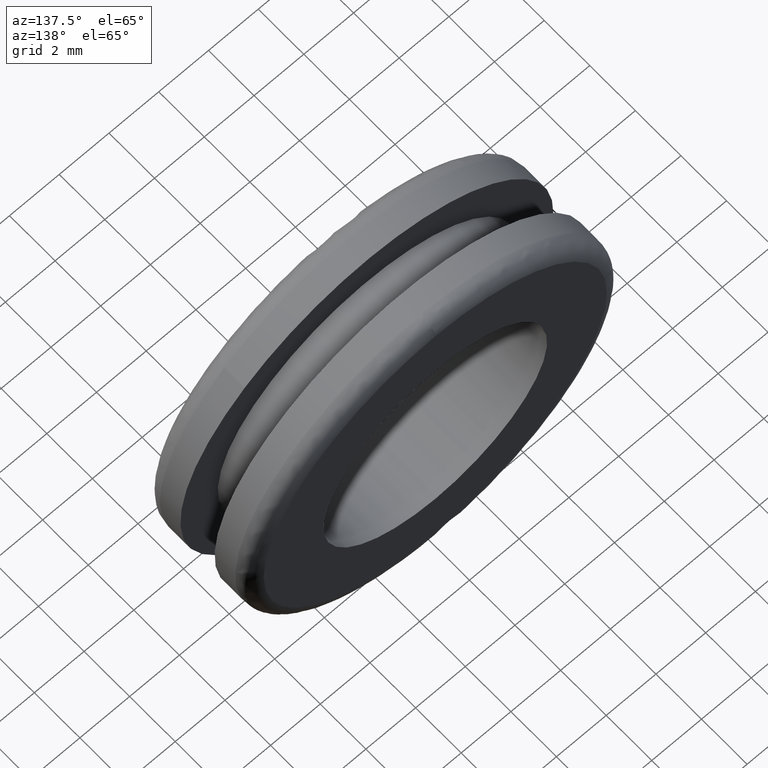
[diagram: clean part render]
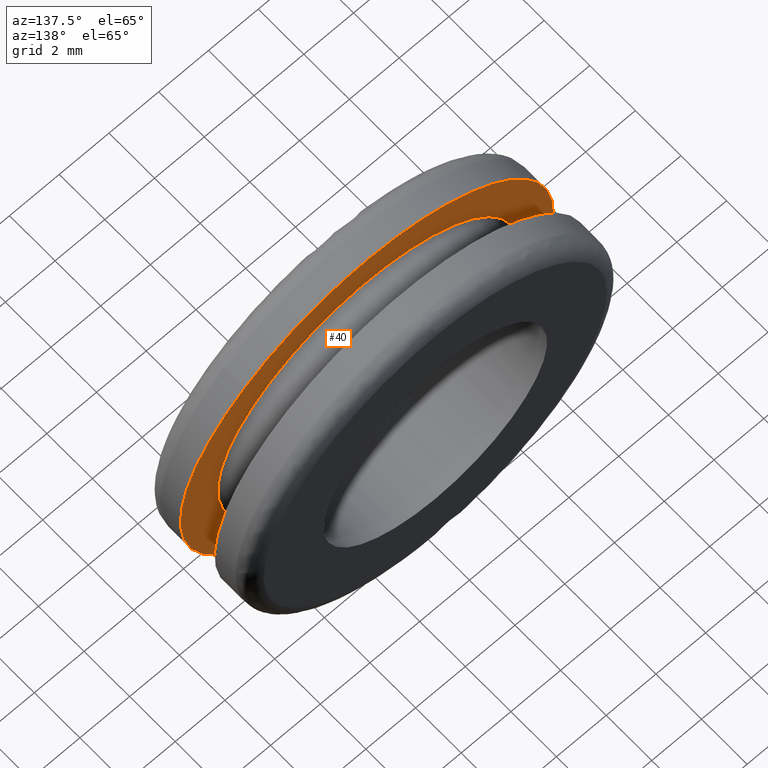
[diagram: same view with one face highlighted and labeled with its STEP entity id]
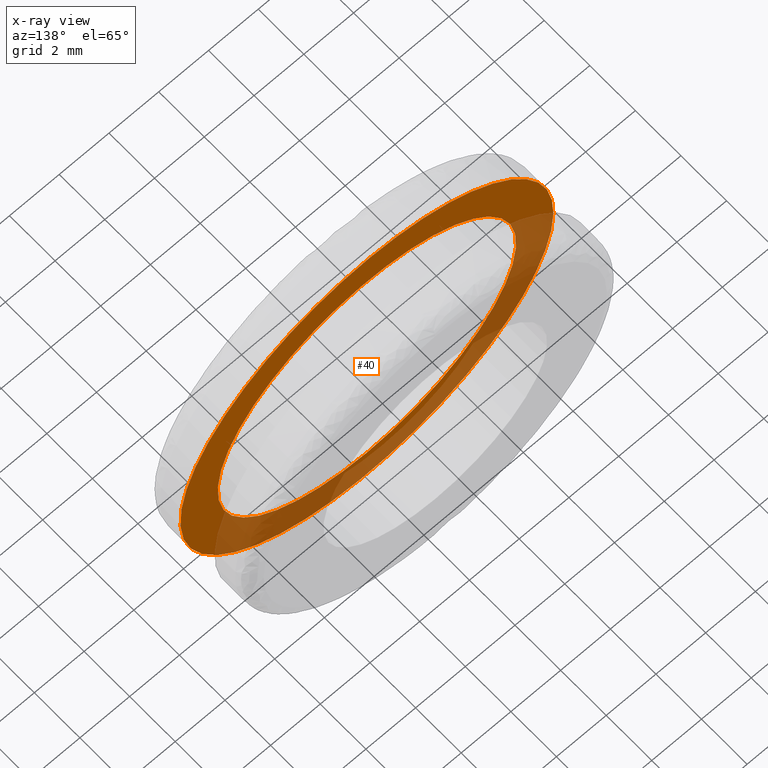
[diagram: x-ray of the same camera — body ghosted, the highlighted face saturated]
A machine part, auxiliary view. The second image highlights one B-rep face of the part: STEP entity #40.
The next image is the same camera in x-ray: the body ghosted, the highlighted face saturated — about 41% of this face is hidden behind the body in this view.
In plain terms, the highlighted planar face has unit normal (0, -1, 0).
Its self-contained STEP definition (entity closure, byte-faithful):
#40=ADVANCED_FACE('',(#57,#58),#56,.F.);
#56=PLANE('',#223);
#57=FACE_OUTER_BOUND('',#224,.T.);
#58=FACE_BOUND('',#225,.T.);
#220=CARTESIAN_POINT('',(-1.71222702354E+001,1.50000000000E+000,1.68422470606E+001));
#221=DIRECTION('',(0.00000000000E+000,-1.00000000000E+000,0.00000000000E+000));
#222=DIRECTION('',(0.00000000000E+000,0.00000000000E+000,-1.00000000000E+000));
#223=AXIS2_PLACEMENT_3D('',#220,#221,#222);
#224=EDGE_LOOP('',(#388,#389,#390));
#225=EDGE_LOOP('',(#391,#392,#393));
#388=ORIENTED_EDGE('',*,*,#480,.F.);
#389=ORIENTED_EDGE('',*,*,#481,.F.);
#390=ORIENTED_EDGE('',*,*,#482,.F.);
#391=ORIENTED_EDGE('',*,*,#483,.T.);
#392=ORIENTED_EDGE('',*,*,#484,.T.);
#393=ORIENTED_EDGE('',*,*,#485,.T.);
#480=EDGE_CURVE('',#526,#527,#528,.T.);
#481=EDGE_CURVE('',#534,#526,#535,.T.);
#482=EDGE_CURVE('',#527,#534,#541,.T.);
#483=EDGE_CURVE('',#547,#548,#549,.T.);
#484=EDGE_CURVE('',#548,#555,#556,.T.);
#485=EDGE_CURVE('',#555,#547,#562,.T.);
#526=VERTEX_POINT('',#836);
#527=VERTEX_POINT('',#837);
#528=CIRCLE('',#841,7.50000042183E+000);
#534=VERTEX_POINT('',#842);
#535=CIRCLE('',#846,7.50000042183E+000);
#541=CIRCLE('',#850,7.50000042183E+000);
#547=VERTEX_POINT('',#851);
#548=VERTEX_POINT('',#852);
#549=CIRCLE('',#856,6.00000000000E+000);
#555=VERTEX_POINT('',#857);
#556=CIRCLE('',#861,6.00000000000E+000);
#562=CIRCLE('',#865,6.00000000000E+000);
#836=CARTESIAN_POINT('',(4.90754797954E+000,1.50000000000E+000,5.67150645626E+000));
#837=CARTESIAN_POINT('',(-5.06692668342E+000,1.50000000000E+000,5.52958076030E+000));
#838=CARTESIAN_POINT('',(1.57169293136E-007,1.50000000000E+000,4.21831123809E-007));
#839=DIRECTION('',(2.36484451285E-017,-1.00000000000E+000,4.36443828221E-015));
#840=DIRECTION('',(-6.75590207414E-001,3.20182477624E-015,7.37277336995E-001));
#841=AXIS2_PLACEMENT_3D('',#838,#839,#840);
#842=CARTESIAN_POINT('',(-4.90737898492E+000,1.50000000000E+000,-5.67165156708E+000));
#843=CARTESIAN_POINT('',(1.57169293136E-007,1.50000000000E+000,4.21831123809E-007));
#844=DIRECTION('',(2.36484451285E-017,-1.00000000000E+000,4.36443828221E-015));
#845=DIRECTION('',(-6.75590207414E-001,3.20182477624E-015,7.37277336995E-001));
#846=AXIS2_PLACEMENT_3D('',#843,#844,#845);
#847=CARTESIAN_POINT('',(1.57169293136E-007,1.50000000000E+000,4.21831123809E-007));
#848=DIRECTION('',(2.36484451285E-017,-1.00000000000E+000,4.36443828221E-015));
#849=DIRECTION('',(-6.75590207414E-001,3.20182477624E-015,7.37277336995E-001));
#850=AXIS2_PLACEMENT_3D('',#847,#848,#849);
#851=CARTESIAN_POINT('',(2.22044604925E-016,1.50000000000E+000,-5.99999999999E+000));
#852=CARTESIAN_POINT('',(5.95793466628E+000,1.50000000000E+000,-7.09235160062E-001));
#853=CARTESIAN_POINT('',(2.07744932368E-012,1.50000000000E+000,4.56967796936E-012));
#854=DIRECTION('',(1.57361076196E-014,-1.00000000000E+000,1.05423420857E-013));
#855=DIRECTION('',(-3.45806716595E-013,-1.05423420857E-013,-1.00000000000E+000));
#856=AXIS2_PLACEMENT_3D('',#853,#854,#855);
#857=CARTESIAN_POINT('',(-5.95805715818E+000,1.50000000000E+000,7.08205407902E-001));
#858=CARTESIAN_POINT('',(2.07744932368E-012,1.50000000000E+000,4.56967796936E-012));
#859=DIRECTION('',(1.57361076196E-014,-1.00000000000E+000,1.05423420857E-013));
#860=DIRECTION('',(-3.45806716595E-013,-1.05423420857E-013,-1.00000000000E+000));
#861=AXIS2_PLACEMENT_3D('',#858,#859,#860);
#862=CARTESIAN_POINT('',(2.07744932368E-012,1.50000000000E+000,4.56967796936E-012));
#863=DIRECTION('',(1.57361076196E-014,-1.00000000000E+000,1.05423420857E-013));
#864=DIRECTION('',(-3.45806716595E-013,-1.05423420857E-013,-1.00000000000E+000));
#865=AXIS2_PLACEMENT_3D('',#862,#863,#864);